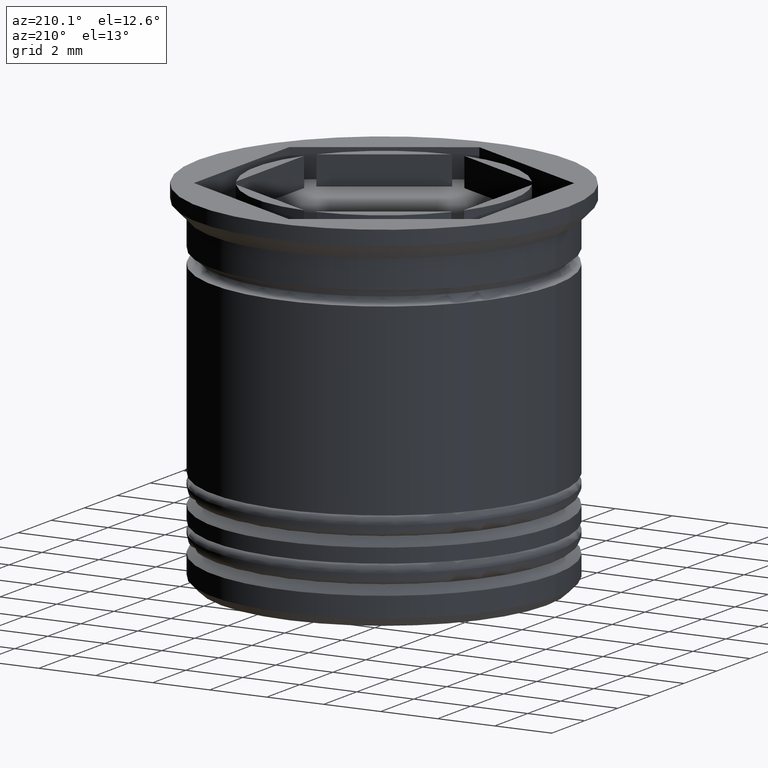
[diagram: clean part render]
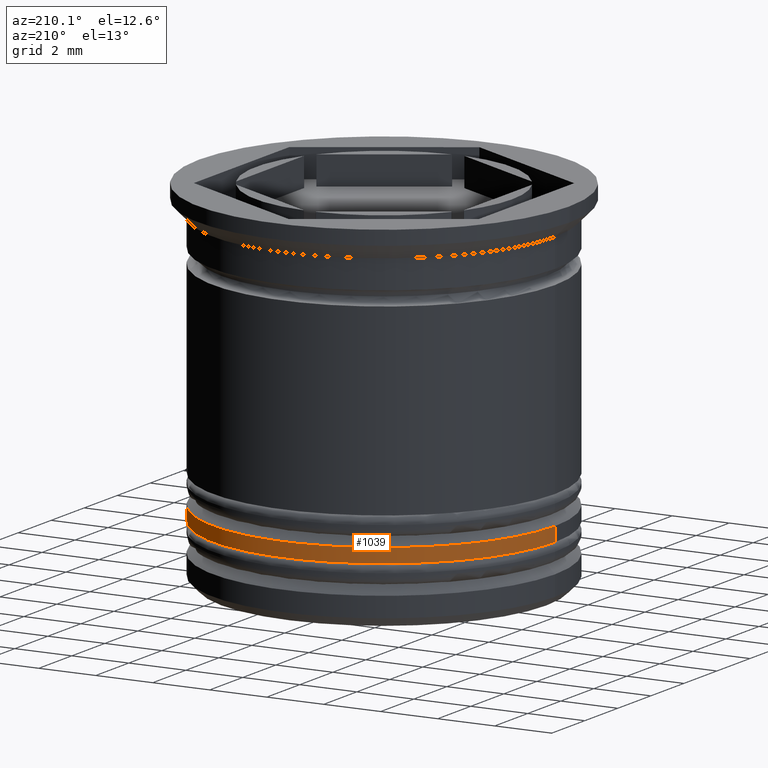
[diagram: same view with one face highlighted and labeled with its STEP entity id]
A machine part, auxiliary view. The second image highlights one B-rep face of the part: STEP entity #1039.
In plain terms, the highlighted cylindrical surface (partial cylindrical patch) has radius 6 mm, axis along (-0, -0, 1).
Its self-contained STEP definition (entity closure, byte-faithful):
#34 = CARTESIAN_POINT ( 'NONE',  ( 6.000000000000001776, 0.000000000000000000, -10.50000000000000178 ) ) ;
#194 = ORIENTED_EDGE ( 'NONE', *, *, #925, .T. ) ;
#198 = DIRECTION ( 'NONE',  ( 1.000000000000000000, 0.000000000000000000, 0.000000000000000000 ) ) ;
#213 = EDGE_CURVE ( 'NONE', #1845, #1870, #967, .T. ) ;
#224 = CARTESIAN_POINT ( 'NONE',  ( 0.000000000000000000, 0.000000000000000000, 0.000000000000000000 ) ) ;
#235 = ORIENTED_EDGE ( 'NONE', *, *, #1594, .T. ) ;
#355 = LINE ( 'NONE', #826, #397 ) ;
#397 = VECTOR ( 'NONE', #947, 1000.000000000000000 ) ;
#399 = DIRECTION ( 'NONE',  ( -0.000000000000000000, -0.000000000000000000, 1.000000000000000000 ) ) ;
#517 = CARTESIAN_POINT ( 'NONE',  ( 6.000000000000001776, 0.000000000000000000, -10.00000000000000533 ) ) ;
#675 = ORIENTED_EDGE ( 'NONE', *, *, #1396, .T. ) ;
#684 = DIRECTION ( 'NONE',  ( -0.000000000000000000, -0.000000000000000000, 1.000000000000000000 ) ) ;
#706 = DIRECTION ( 'NONE',  ( -0.000000000000000000, -0.000000000000000000, 1.000000000000000000 ) ) ;
#712 = DIRECTION ( 'NONE',  ( 0.000000000000000000, 0.000000000000000000, -1.000000000000000000 ) ) ;
#773 = AXIS2_PLACEMENT_3D ( 'NONE', #1953, #712, #1291 ) ;
#793 = VERTEX_POINT ( 'NONE', #1036 ) ;
#826 = CARTESIAN_POINT ( 'NONE',  ( -6.000000000000001776, 7.347880794884121708E-16, 0.000000000000000000 ) ) ;
#876 = CYLINDRICAL_SURFACE ( 'NONE', #1871, 6.000000000000001776 ) ;
#925 = EDGE_CURVE ( 'NONE', #793, #1495, #355, .T. ) ;
#947 = DIRECTION ( 'NONE',  ( -0.000000000000000000, -0.000000000000000000, 1.000000000000000000 ) ) ;
#967 = LINE ( 'NONE', #1472, #1056 ) ;
#1036 = CARTESIAN_POINT ( 'NONE',  ( -6.000000000000001776, 7.347880794884121708E-16, -10.50000000000000178 ) ) ;
#1039 = ADVANCED_FACE ( 'NONE', ( #1958 ), #876, .T. ) ;
#1056 = VECTOR ( 'NONE', #706, 1000.000000000000000 ) ;
#1123 = CARTESIAN_POINT ( 'NONE',  ( 0.000000000000000000, 0.000000000000000000, -10.50000000000000178 ) ) ;
#1291 = DIRECTION ( 'NONE',  ( -1.000000000000000000, 0.000000000000000000, 0.000000000000000000 ) ) ;
#1371 = ORIENTED_EDGE ( 'NONE', *, *, #213, .F. ) ;
#1396 = EDGE_CURVE ( 'NONE', #1845, #793, #1717, .T. ) ;
#1458 = EDGE_LOOP ( 'NONE', ( #675, #194, #235, #1371 ) ) ;
#1472 = CARTESIAN_POINT ( 'NONE',  ( 6.000000000000001776, 0.000000000000000000, 0.000000000000000000 ) ) ;
#1478 = CIRCLE ( 'NONE', #773, 6.000000000000001776 ) ;
#1495 = VERTEX_POINT ( 'NONE', #1897 ) ;
#1545 = AXIS2_PLACEMENT_3D ( 'NONE', #1123, #684, #198 ) ;
#1594 = EDGE_CURVE ( 'NONE', #1495, #1870, #1478, .T. ) ;
#1618 = DIRECTION ( 'NONE',  ( 1.000000000000000000, 0.000000000000000000, 0.000000000000000000 ) ) ;
#1717 = CIRCLE ( 'NONE', #1545, 6.000000000000001776 ) ;
#1845 = VERTEX_POINT ( 'NONE', #34 ) ;
#1870 = VERTEX_POINT ( 'NONE', #517 ) ;
#1871 = AXIS2_PLACEMENT_3D ( 'NONE', #224, #399, #1618 ) ;
#1897 = CARTESIAN_POINT ( 'NONE',  ( -6.000000000000001776, 7.347880794884121708E-16, -10.00000000000000533 ) ) ;
#1953 = CARTESIAN_POINT ( 'NONE',  ( 0.000000000000000000, 0.000000000000000000, -10.00000000000000533 ) ) ;
#1958 = FACE_OUTER_BOUND ( 'NONE', #1458, .T. ) ;